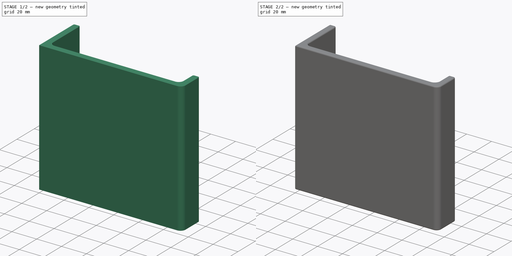
[diagram: build sequence overview — one tinted view per stage of 2, left to right]
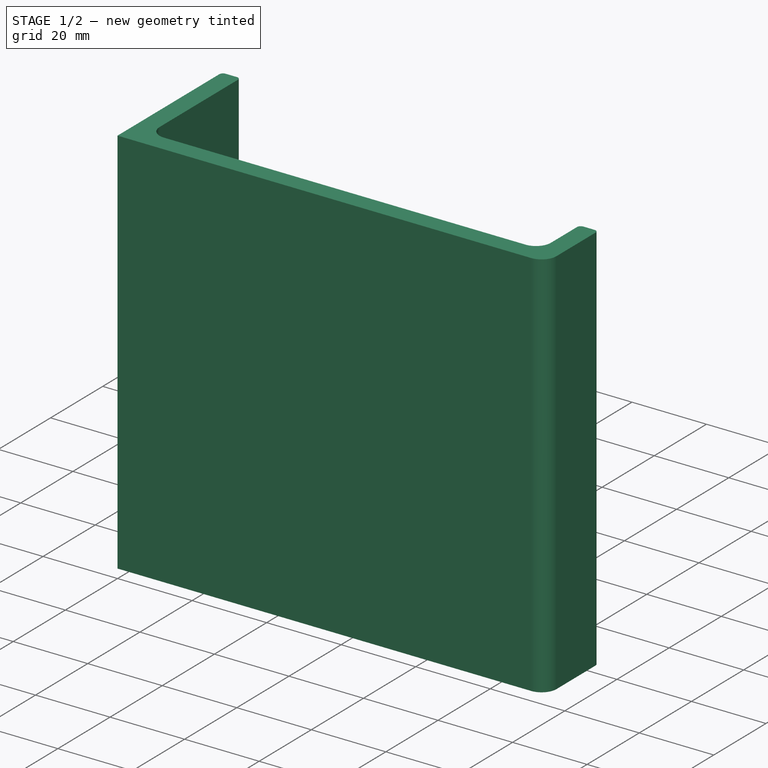
[diagram: stage 1 of 2 — iso view after this stage's code; geometry added in this stage tinted green]
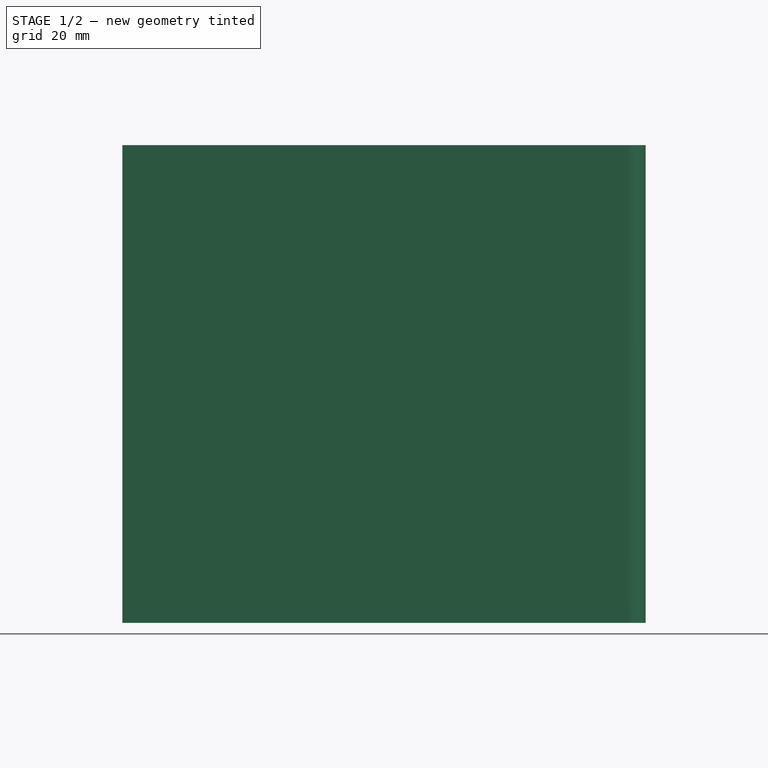
[diagram: stage 1 of 2 — front view after this stage's code; geometry added in this stage tinted green]
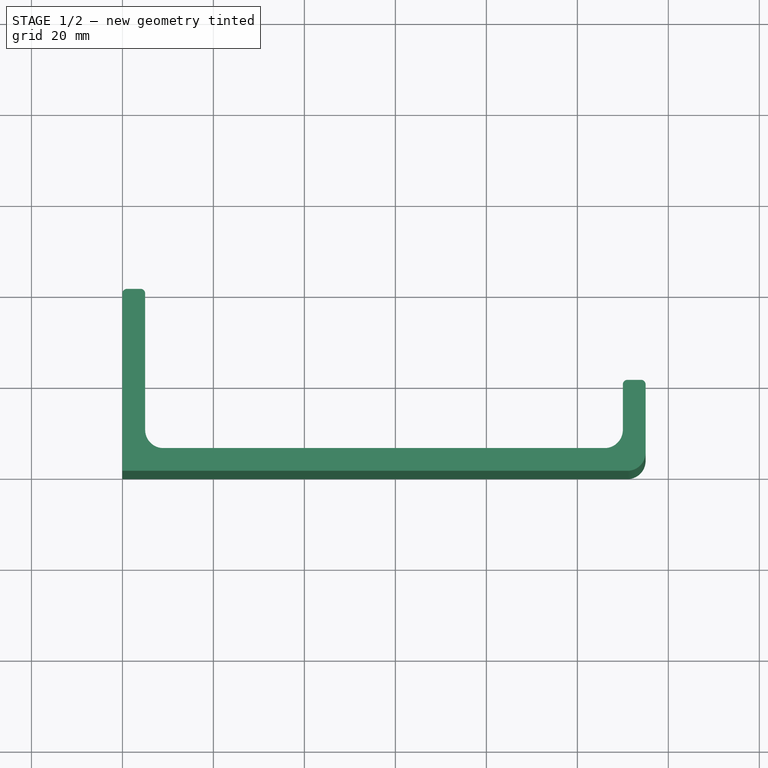
[diagram: stage 1 of 2 — top view after this stage's code; geometry added in this stage tinted green]
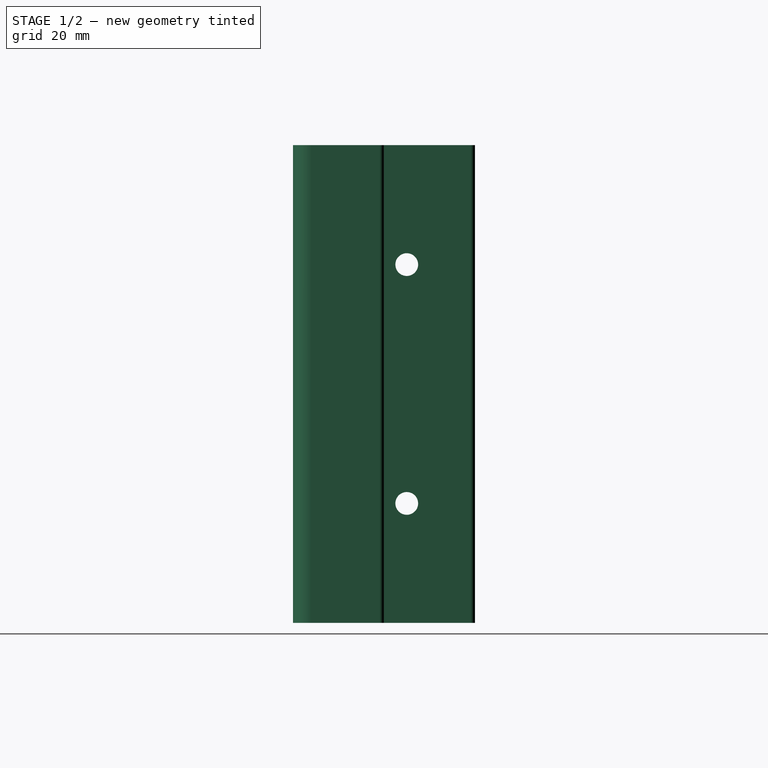
[diagram: stage 1 of 2 — right view after this stage's code; geometry added in this stage tinted green]
FCSTD DOCUMENT  (FreeCAD 1.0R39319 (Git))
Label: kukkateline_pieni_1
License: All rights reserved
LicenseURL: https://en.wikipedia.org/wiki/All_rights_reserved
objects: Sketcher::SketchObject×3, PartDesign::Pocket×2, Spreadsheet::Sheet×1, PartDesign::Pad×1, PartDesign::Fillet×1, PartDesign::Body×1
note: 19 computed .brp shape members not serialized (recipe doc carries the construction recipe); baked Part::Feature solids carry a one-line shape summary decoded from their .brp

FEATURE [Sketcher::SketchObject] Sketch
  ArcFitTolerance = 1e-06
  FullyConstrained = true
  MakeInternals = false
  expr: Constraints[10] = Spreadsheet.height1
  expr: Constraints[11] = Spreadsheet.height2
  expr: Constraints[12] = Spreadsheet.lenght
  expr: Constraints[19] = Spreadsheet.kulma1
  expr: Constraints[24] = Spreadsheet.kulma1
  expr: Constraints[38] = Spreadsheet.kulma2
  expr: Constraints[40] = Spreadsheet.thiknes
  expr: Constraints[8] = Spreadsheet.thiknes
  expr: Constraints[9] = Spreadsheet.thiknes
  sketch-geometry (22):
    g0: LineSegment StartX=115 StartY=4 StartZ=0 EndX=115 EndY=19 EndZ=0
    g1: LineSegment StartX=114 StartY=20 StartZ=0 EndX=111 EndY=20 EndZ=0
    g2: LineSegment StartX=110 StartY=19 StartZ=0 EndX=110 EndY=9 EndZ=0
    g3: LineSegment StartX=106 StartY=5 StartZ=0 EndX=9 EndY=5 EndZ=0
    g4: LineSegment StartX=5 StartY=9 StartZ=0 EndX=5 EndY=39 EndZ=0
    g5: LineSegment StartX=4 StartY=40 StartZ=0 EndX=1 EndY=40 EndZ=0
    g6: LineSegment StartX=0 StartY=39 StartZ=0 EndX=0 EndY=0 EndZ=0
    g7: LineSegment StartX=0 StartY=0 StartZ=0 EndX=111 EndY=0 EndZ=0
    g8: ArcOfCircle CenterX=111 CenterY=4 CenterZ=0 NormalX=0 NormalY=0 NormalZ=1 AngleXU=0 Radius=4 StartAngle=4.71239 EndAngle=6.28319
    g9: GeomPoint [constr] X=115 Y=0 Z=0
    g10: ArcOfCircle CenterX=9 CenterY=9 CenterZ=0 NormalX=0 NormalY=0 NormalZ=1 AngleXU=0 Radius=4 StartAngle=3.14159 EndAngle=4.71239
    g11: GeomPoint [constr] X=5 Y=5 Z=0
    g12: ArcOfCircle CenterX=106 CenterY=9 CenterZ=0 NormalX=0 NormalY=0 NormalZ=1 AngleXU=0 Radius=4 StartAngle=4.71239 EndAngle=6.28319
    g13: GeomPoint [constr] X=110 Y=5 Z=0
    g14: ArcOfCircle CenterX=114 CenterY=19 CenterZ=0 NormalX=0 NormalY=0 NormalZ=1 AngleXU=0 Radius=1 StartAngle=8e-16 EndAngle=1.5708
    g15: GeomPoint [constr] X=115 Y=20 Z=0
    g16: ArcOfCircle CenterX=111 CenterY=19 CenterZ=0 NormalX=0 NormalY=0 NormalZ=1 AngleXU=0 Radius=1 StartAngle=1.5708 EndAngle=3.14159
    g17: GeomPoint [constr] X=110 Y=20 Z=0
    g18: ArcOfCircle CenterX=4 CenterY=39 CenterZ=0 NormalX=0 NormalY=0 NormalZ=1 AngleXU=0 Radius=1 StartAngle=1.5e-15 EndAngle=1.5708
    g19: GeomPoint [constr] X=5 Y=40 Z=0
    g20: ArcOfCircle CenterX=1 CenterY=39 CenterZ=0 NormalX=0 NormalY=0 NormalZ=1 AngleXU=0 Radius=1 StartAngle=1.5708 EndAngle=3.14159
    g21: GeomPoint [constr] X=0 Y=40 Z=0
  constraints (51):
    c: PointOnObject(g9,g-1)
    c: Vertical(g0)
    c: Horizontal(g1)
    c: Vertical(g2)
    c: Horizontal(g3)
    c: Vertical(g4)
    c: PointOnObject(g21,g-2)
    c: Horizontal(g5)
    c: DistanceY(g-1,g11) = 5
    c: DistanceX(g21,g19) = 5
    c: DistanceY(g9,g15) = 20
    c: DistanceY(g6,g21) = 40
    c: DistanceX(g11,g13) = 105
    c: Coincident(g6,g-1)
    c: Coincident(g7,g6)
    c: PointOnObject(g9,g0)
    c: PointOnObject(g9,g7)
    c: Tangent(g0,g8) = -1.5708
    c: Tangent(g7,g8) = -1.5708
    c: Radius(g8) = 4
    c: PointOnObject(g11,g3)
    c: PointOnObject(g11,g4)
    c: Tangent(g3,g10) = 1.5708
    c: Tangent(g4,g10) = 1.5708
    c: Radius(g10) = 4
    c: PointOnObject(g13,g2)
    c: PointOnObject(g13,g3)
    c: Tangent(g2,g12) = 1.5708
    c: Tangent(g3,g12) = 1.5708
    c: Equal(g12,g8)
    c: PointOnObject(g15,g0)
    c: PointOnObject(g15,g1)
    c: Tangent(g0,g14) = -1.5708
    c: Tangent(g1,g14) = -1.5708
    c: PointOnObject(g17,g1)
    c: PointOnObject(g17,g2)
    c: Tangent(g1,g16) = -1.5708
    c: Tangent(g2,g16) = -1.5708
    c: Radius(g16) = 1
    c: Equal(g16,g14)
    c: DistanceX(g2,g0) = 5
    c: PointOnObject(g19,g4)
    c: PointOnObject(g19,g5)
    c: Tangent(g4,g18) = -1.5708
    c: Tangent(g5,g18) = -1.5708
    c: PointOnObject(g21,g5)
    c: PointOnObject(g21,g6)
    c: Tangent(g5,g20) = -1.5708
    c: Tangent(g6,g20) = -1.5708
    c: Equal(g18,g20)
    c: Equal(g20,g16)
FEATURE [Spreadsheet::Sheet] Spreadsheet
  cells = A1='lenght; B1(lenght)=105; A2='thiknes; B2(thiknes)=5; A3='height1; B3(height1)=20; A4='height2; B4(height2)=40; A5='kulma1; B5(kulma1)=4; A6='kulma2; B6(kulma2)=1; A7='kuoppa; B7(kuoppa)=95
FEATURE [PartDesign::Pad] Pad
  Direction = (0,0,1)
  Length = 105
  Length2 = 10
  Profile = -> Sketch
  ReferenceAxis = -> Sketch [N_Axis]
  Refine = true
  Suppressed = false
  Type = 0
  expr: Length = Spreadsheet.lenght
FEATURE [Sketcher::SketchObject] Sketch001
  ArcFitTolerance = 1e-06
  AttachmentSupport = -> [Pad]
  FullyConstrained = true
  MakeInternals = false
  MapMode = 5
  Placement = pos=(5,0,0) rot=(0.57735,0.57735,0.57735;2.0944rad)
  expr: Constraints[10] = Spreadsheet.lenght / 2
  expr: Constraints[1] = Spreadsheet.lenght / 2
  expr: Constraints[2] = Spreadsheet.height2 / 2 + Spreadsheet.thiknes
  sketch-geometry (5):
    g0: Circle CenterX=25 CenterY=78.75 CenterZ=0 NormalX=0 NormalY=0 NormalZ=1 AngleXU=0 Radius=2.5
    g1: Circle CenterX=25 CenterY=26.25 CenterZ=0 NormalX=0 NormalY=0 NormalZ=1 AngleXU=0 Radius=2.5
    g2: GeomPoint [constr] X=25 Y=52.5 Z=0
    g3: LineSegment [constr] StartX=25 StartY=78.75 StartZ=0 EndX=25 EndY=52.5 EndZ=0
    g4: LineSegment [constr] StartX=25 StartY=26.25 StartZ=0 EndX=25 EndY=52.5 EndZ=0
  constraints (12):
    c: Equal(g1,g0)
    c: DistanceY(g-1,g2) = 52.5
    c: DistanceX(g-1,g2) = 25
    c: Coincident(g3,g0)
    c: Coincident(g3,g2)
    c: Vertical(g3)
    c: Coincident(g4,g1)
    c: Coincident(g4,g2)
    c: Vertical(g4)
    c: Equal(g4,g3)
    c: DistanceY(g1,g0) = 52.5
    c: Diameter(g1) = 5
FEATURE [PartDesign::Pocket] Pocket
  BaseFeature = -> Pad
  Direction = (-1,0,0)
  Length = 5
  Length2 = 5
  Profile = -> Sketch001
  ReferenceAxis = -> Sketch001 [N_Axis]
  Refine = true
  Suppressed = false
  Type = 0
  expr: Length = Spreadsheet.thiknes
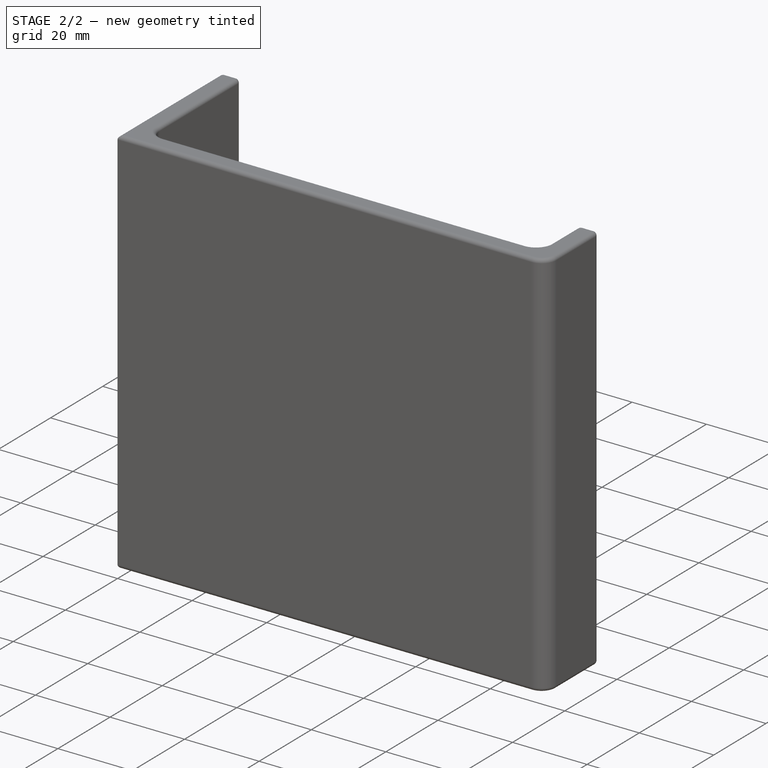
[diagram: stage 2 of 2 — iso view after this stage's code; geometry added in this stage tinted green]
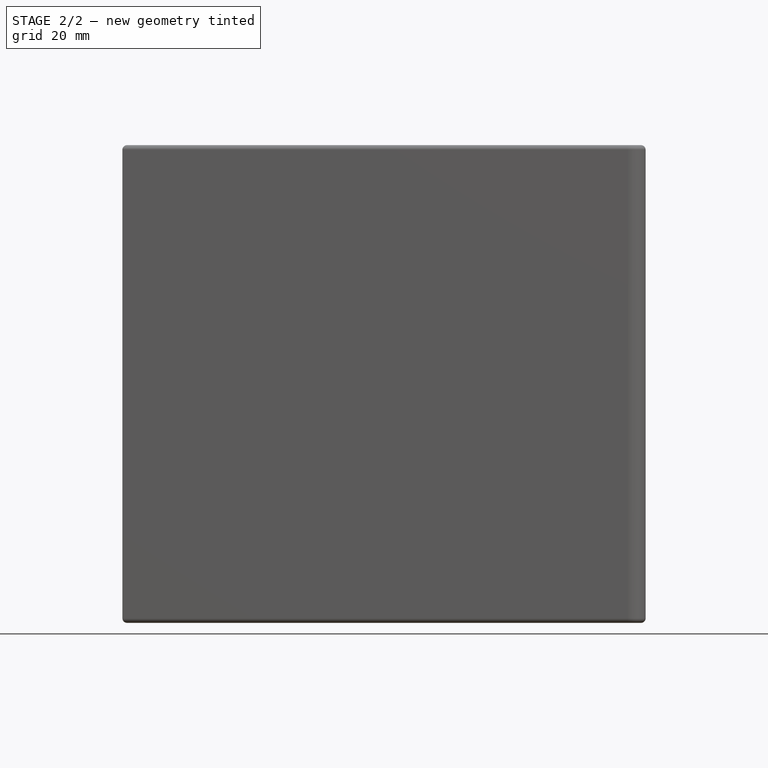
[diagram: stage 2 of 2 — front view after this stage's code; geometry added in this stage tinted green]
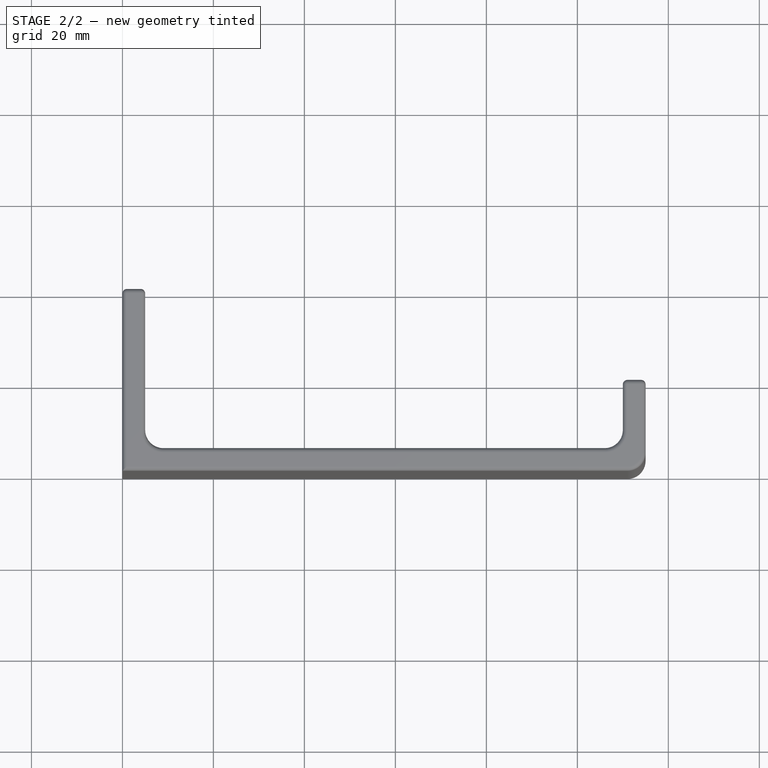
[diagram: stage 2 of 2 — top view after this stage's code; geometry added in this stage tinted green]
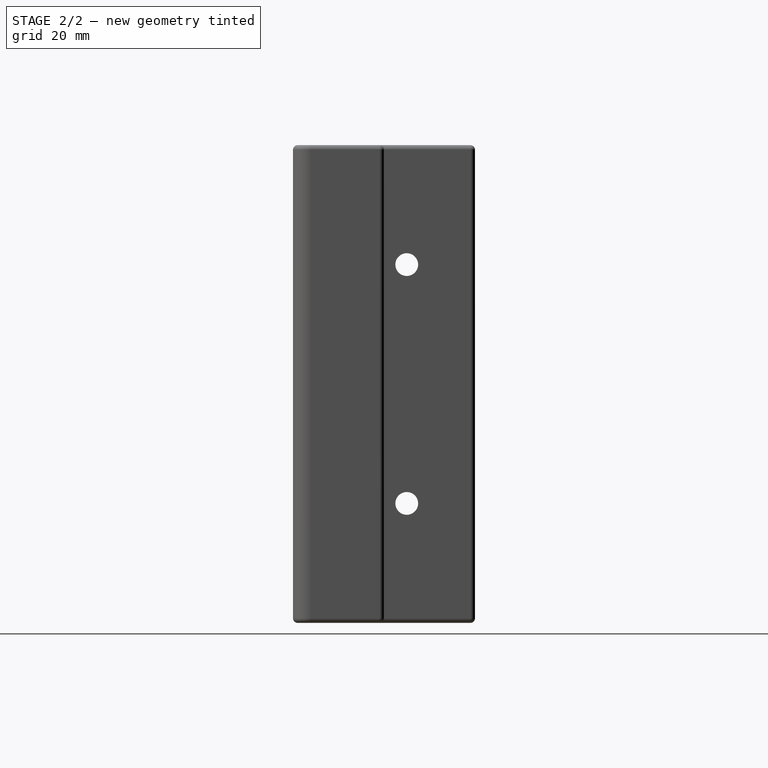
[diagram: stage 2 of 2 — right view after this stage's code; geometry added in this stage tinted green]
FEATURE [Sketcher::SketchObject] Sketch002
  ArcFitTolerance = 1e-06
  AttachmentSupport = -> [Pocket]
  FullyConstrained = true
  MakeInternals = false
  MapMode = 5
  Placement = pos=(0,5,0) rot=(0,0.707107,0.707107;3.14159rad)
  expr: Constraints[0] = Spreadsheet.lenght / 2
  expr: Constraints[1] = Spreadsheet.lenght / 2 + Spreadsheet.thiknes
  expr: Constraints[2] = Spreadsheet.kuoppa
  sketch-geometry (1):
    g0: Circle CenterX=-57.5 CenterY=52.5 CenterZ=0 NormalX=0 NormalY=0 NormalZ=1 AngleXU=0 Radius=47.5
  constraints (3):
    c: DistanceY(g-1,g0) = 52.5
    c: DistanceX(g0,g-1) = 57.5
    c: Diameter(g0) = 95
FEATURE [PartDesign::Pocket] Pocket001
  BaseFeature = -> Pocket
  Direction = (0,-1,2e-16)
  Length = 2
  Length2 = 5
  Profile = -> Sketch002
  ReferenceAxis = -> Sketch002 [N_Axis]
  Refine = true
  Suppressed = false
  Type = 0
FEATURE [PartDesign::Fillet] Fillet
  Base = -> Pocket001 [Edge27,Edge14]
  BaseFeature = -> Pocket001
  Radius = 1
  Refine = true
  SupportTransform = false
  Suppressed = false
  UseAllEdges = false
  expr: Radius = Spreadsheet.kulma2
FEATURE [PartDesign::Body] Body
  AllowCompound = false
  Group = -> [Sketch,Pad,Sketch001,Pocket,Sketch002,Pocket001,Fillet]
  Origin = -> Origin
  Tip = -> Fillet
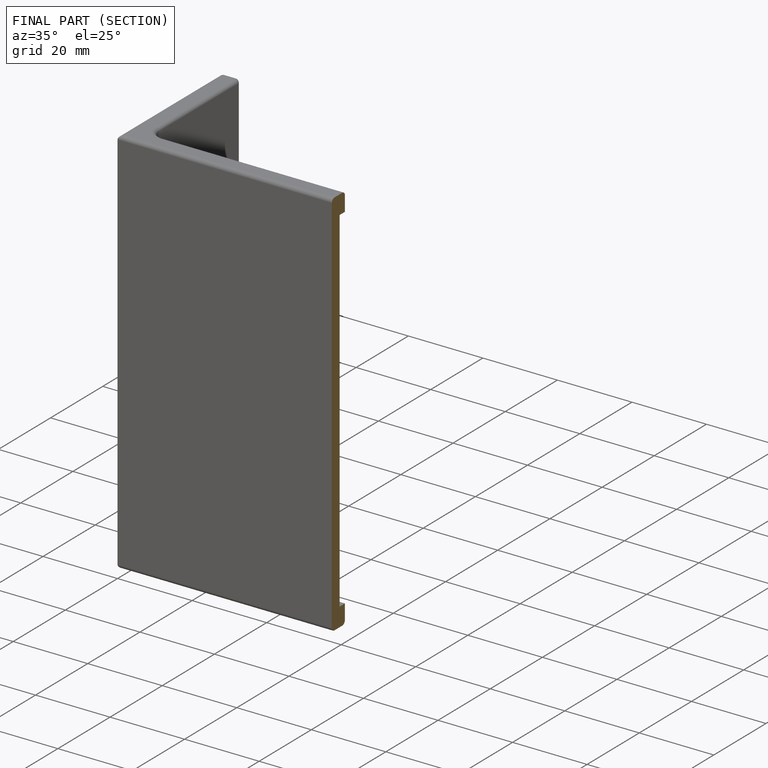
[diagram: finished part — half-section view (interior)]
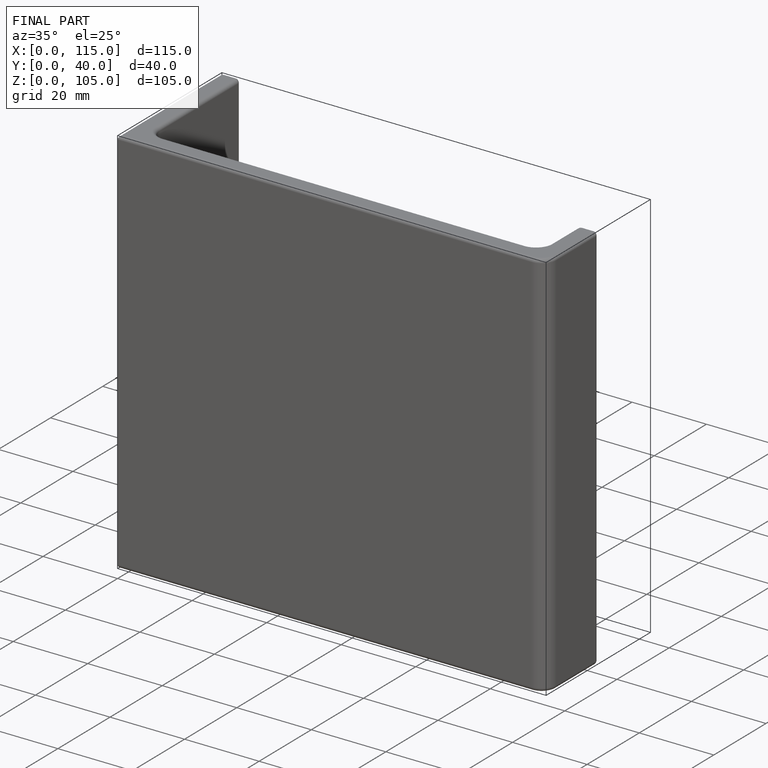
[diagram: finished part — iso view with bounding-box wireframe]
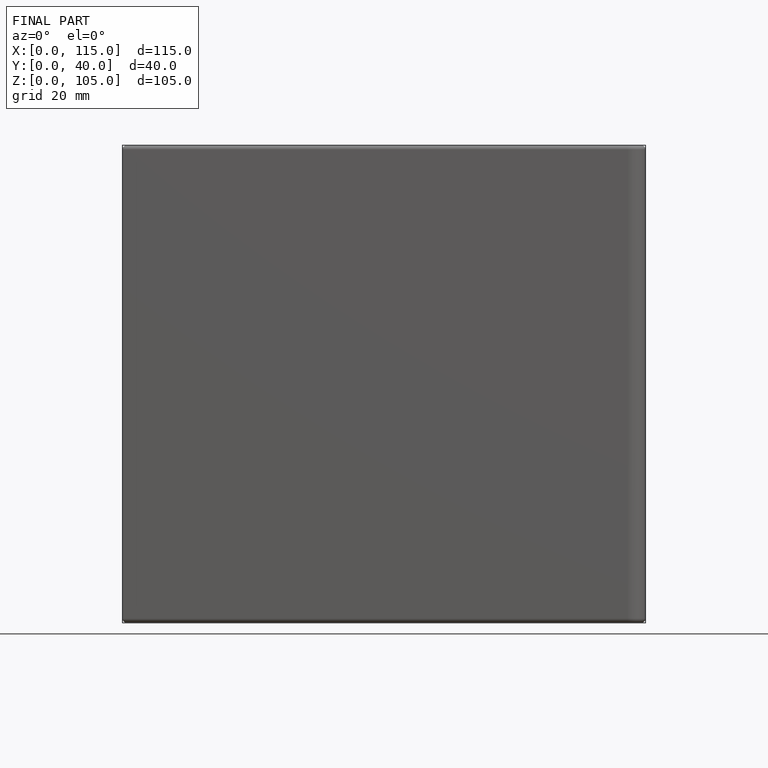
[diagram: finished part — front view with bounding-box wireframe]
